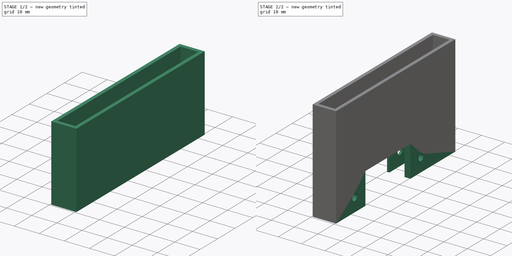
[diagram: build sequence overview — one tinted view per stage of 2, left to right]
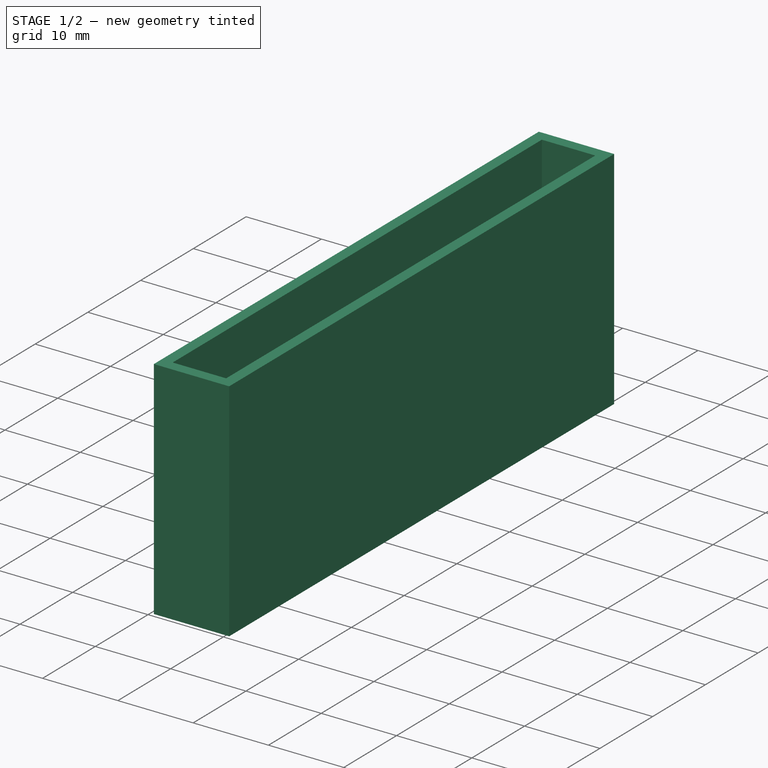
[diagram: stage 1 of 2 — iso view after this stage's code; geometry added in this stage tinted green]
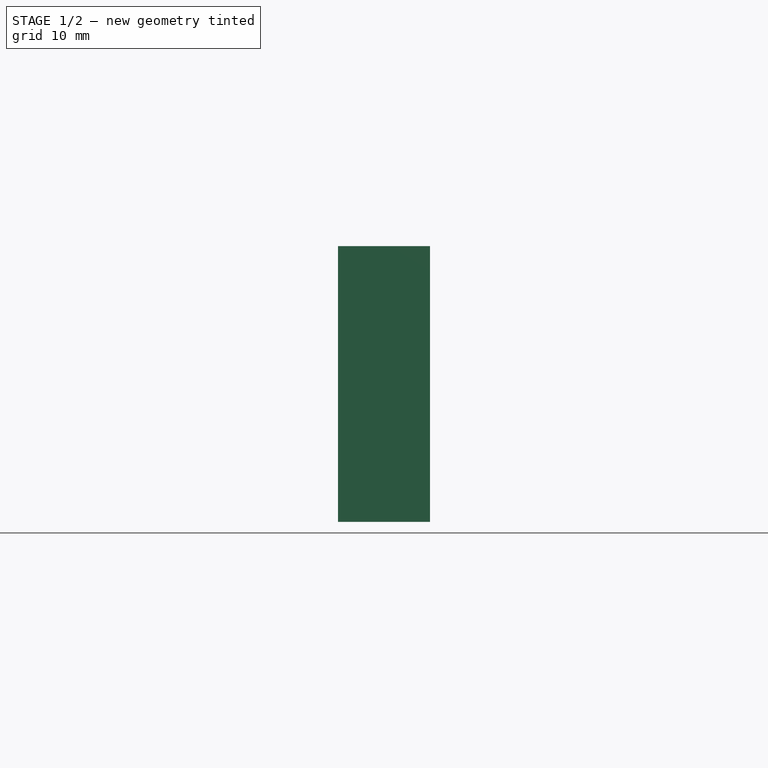
[diagram: stage 1 of 2 — front view after this stage's code; geometry added in this stage tinted green]
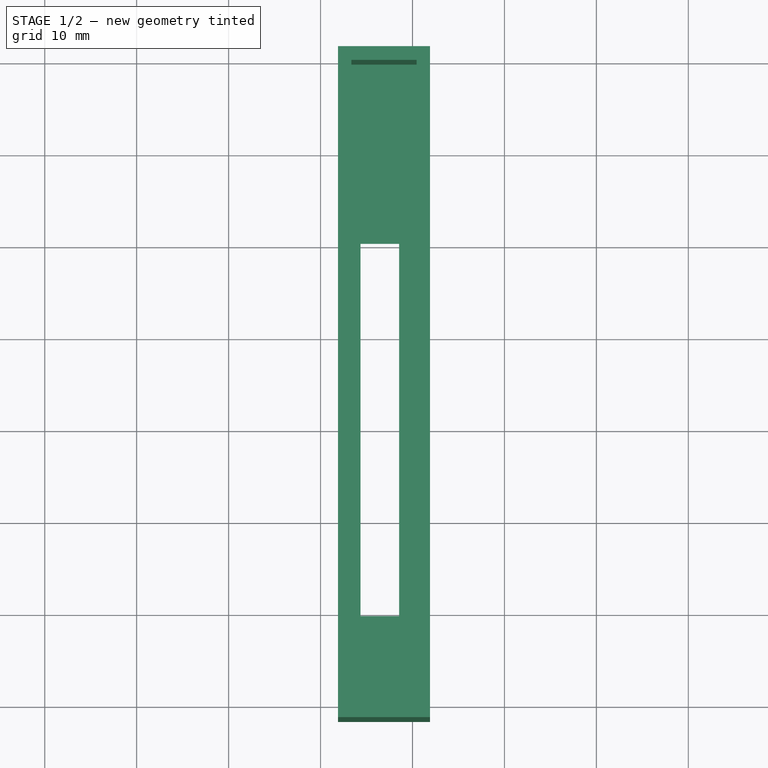
[diagram: stage 1 of 2 — top view after this stage's code; geometry added in this stage tinted green]
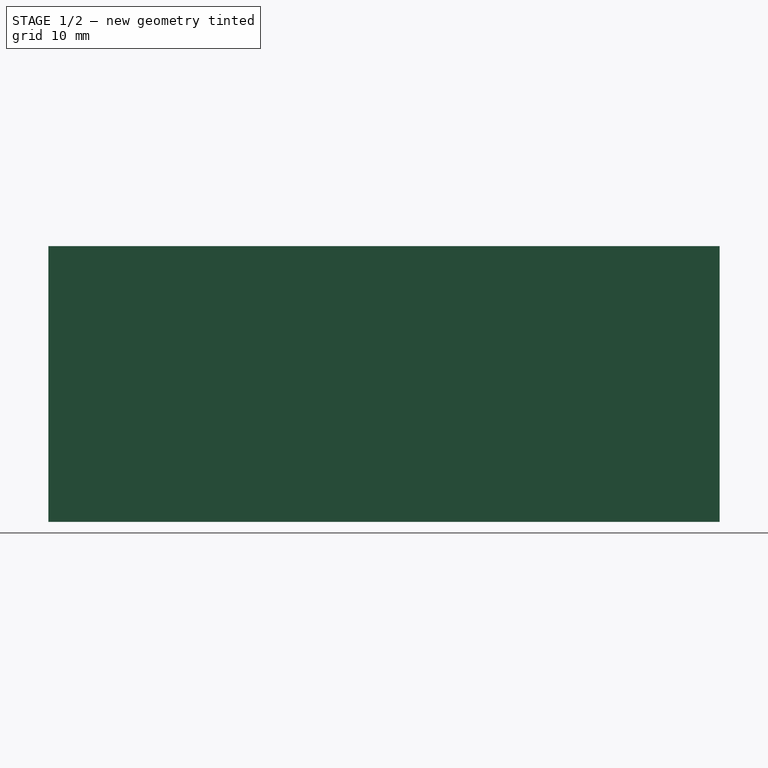
[diagram: stage 1 of 2 — right view after this stage's code; geometry added in this stage tinted green]
FCSTD DOCUMENT  (FreeCAD 1.0R39109 (Git))
Label: ssd side holder
License: All rights reserved
LicenseURL: https://en.wikipedia.org/wiki/All_rights_reserved
objects: Sketcher::SketchObject×4, PartDesign::Pad×3, PartDesign::Hole×1, PartDesign::Body×1
note: 21 computed .brp shape members not serialized (recipe doc carries the construction recipe); baked Part::Feature solids carry a one-line shape summary decoded from their .brp

FEATURE [Sketcher::SketchObject] Sketch
  ArcFitTolerance = 1e-06
  AttachmentSupport = -> [XY_Plane]
  FullyConstrained = false
  MakeInternals = false
  MapMode = 5
  sketch-geometry (8):
    g0: LineSegment StartX=-26.6478 StartY=159.895 StartZ=0 EndX=-26.6478 EndY=89.8951 EndZ=0
    g1: LineSegment StartX=-26.6478 StartY=89.8951 StartZ=0 EndX=-19.5478 EndY=89.8951 EndZ=0
    g2: LineSegment StartX=-19.5478 StartY=89.8951 StartZ=0 EndX=-19.5478 EndY=159.895 EndZ=0
    g3: LineSegment StartX=-19.5478 StartY=159.895 StartZ=0 EndX=-26.6478 EndY=159.895 EndZ=0
    g4: LineSegment StartX=-25.6478 StartY=140.395 StartZ=0 EndX=-25.6478 EndY=99.8951 EndZ=0
    g5: LineSegment StartX=-25.6478 StartY=99.8951 StartZ=0 EndX=-21.4478 EndY=99.8951 EndZ=0
    g6: LineSegment StartX=-21.4478 StartY=99.8951 StartZ=0 EndX=-21.4478 EndY=140.395 EndZ=0
    g7: LineSegment StartX=-21.4478 StartY=140.395 StartZ=0 EndX=-25.6478 EndY=140.395 EndZ=0
  constraints (22):
    c: Coincident(g0,g1)
    c: Coincident(g1,g2)
    c: Coincident(g2,g3)
    c: Coincident(g3,g0)
    c: Vertical(g0)
    c: Vertical(g2)
    c: Horizontal(g1)
    c: Horizontal(g3)
    c: DistanceY(g1,g2) = 70
    c: DistanceX(g0,g1) = 7.1
    c: Coincident(g4,g5)
    c: Coincident(g5,g6)
    c: Coincident(g6,g7)
    c: Coincident(g7,g4)
    c: Vertical(g4)
    c: Vertical(g6)
    c: Horizontal(g5)
    c: Horizontal(g7)
    c: DistanceX(g4,g5) = 4.2
    c: DistanceY(g5,g6) = 40.5
    c: Distance(g1,g5) = 10
    c: Distance(g4,g0) = 1
FEATURE [PartDesign::Pad] Pad  label="base"
  Direction = (0,0,1)
  Length = 0.5
  Length2 = 10
  Profile = -> Sketch
  ReferenceAxis = -> Sketch [N_Axis]
  Refine = true
  Suppressed = false
  Type = 0
FEATURE [Sketcher::SketchObject] Sketch001
  ArcFitTolerance = 1e-06
  AttachmentSupport = -> [Pad]
  ExternalGeometry = -> [Pad]
  FullyConstrained = true
  MakeInternals = false
  MapMode = 5
  Placement = pos=(0,0,0) rot=(1,0,0;3.14159rad)
  expr: Constraints[20] = 1.5
  expr: Constraints[21] = 1.5
  sketch-geometry (8):
    g0: LineSegment StartX=-28.0978 StartY=-88.3951 StartZ=0 EndX=-28.0978 EndY=-161.395 EndZ=0
    g1: LineSegment StartX=-28.0978 StartY=-161.395 StartZ=0 EndX=-18.0978 EndY=-161.395 EndZ=0
    g2: LineSegment StartX=-18.0978 StartY=-161.395 StartZ=0 EndX=-18.0978 EndY=-88.3951 EndZ=0
    g3: LineSegment StartX=-18.0978 StartY=-88.3951 StartZ=0 EndX=-28.0978 EndY=-88.3951 EndZ=0
    g4: LineSegment StartX=-26.6478 StartY=-89.8951 StartZ=0 EndX=-26.6478 EndY=-159.895 EndZ=0
    g5: LineSegment StartX=-26.6478 StartY=-159.895 StartZ=0 EndX=-19.5478 EndY=-159.895 EndZ=0
    g6: LineSegment StartX=-19.5478 StartY=-159.895 StartZ=0 EndX=-19.5478 EndY=-89.8951 EndZ=0
    g7: LineSegment StartX=-19.5478 StartY=-89.8951 StartZ=0 EndX=-26.6478 EndY=-89.8951 EndZ=0
  constraints (22):
    c: Coincident(g0,g1)
    c: Coincident(g1,g2)
    c: Coincident(g2,g3)
    c: Coincident(g3,g0)
    c: Vertical(g0)
    c: Vertical(g2)
    c: Horizontal(g1)
    c: Horizontal(g3)
    c: Coincident(g4,g5)
    c: Coincident(g5,g6)
    c: Coincident(g6,g7)
    c: Coincident(g7,g4)
    c: Vertical(g4)
    c: Vertical(g6)
    c: Horizontal(g5)
    c: Horizontal(g7)
    c: Coincident(g4,g-4)
    c: Coincident(g5,g-6)
    c: DistanceX(g6,g2) = 1.45
    c: DistanceX(g0,g4) = 1.45
    c: DistanceY(g1,g5) = 1.5
    c: DistanceY(g4,g0) = 1.5
FEATURE [PartDesign::Pad] Pad001  label="walls"
  BaseFeature = -> Pad
  Direction = (0,0,-1)
  Length = 30
  Length2 = 10
  Profile = -> Sketch001
  ReferenceAxis = -> Sketch001 [N_Axis]
  Refine = true
  Reversed = true
  Suppressed = false
  Type = 0
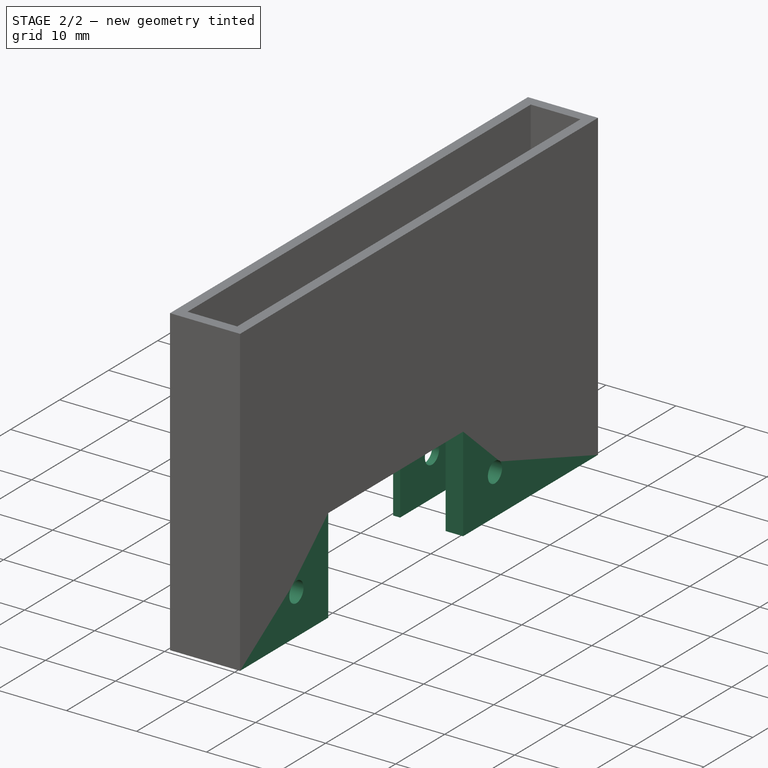
[diagram: stage 2 of 2 — iso view after this stage's code; geometry added in this stage tinted green]
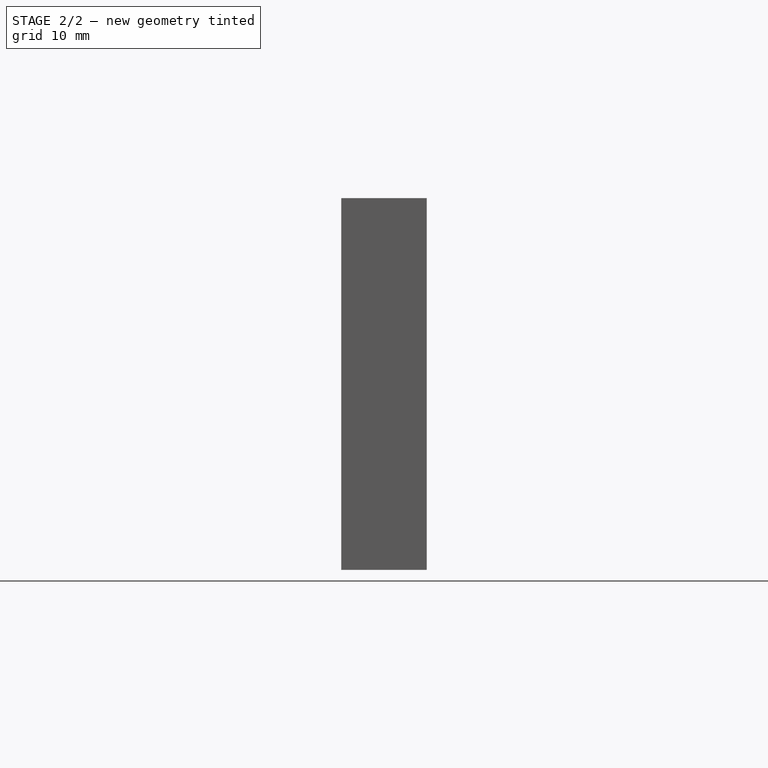
[diagram: stage 2 of 2 — front view after this stage's code; geometry added in this stage tinted green]
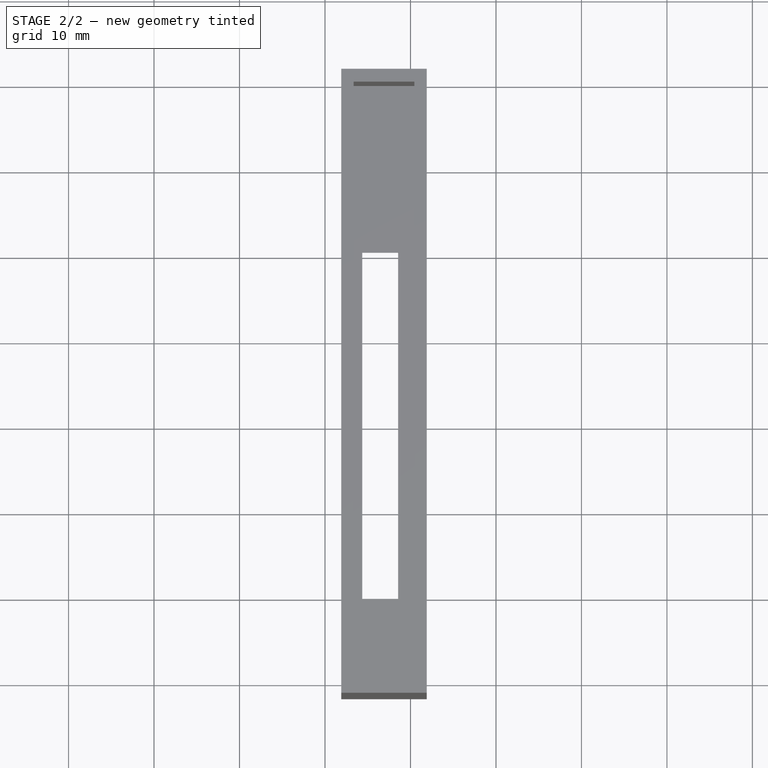
[diagram: stage 2 of 2 — top view after this stage's code; geometry added in this stage tinted green]
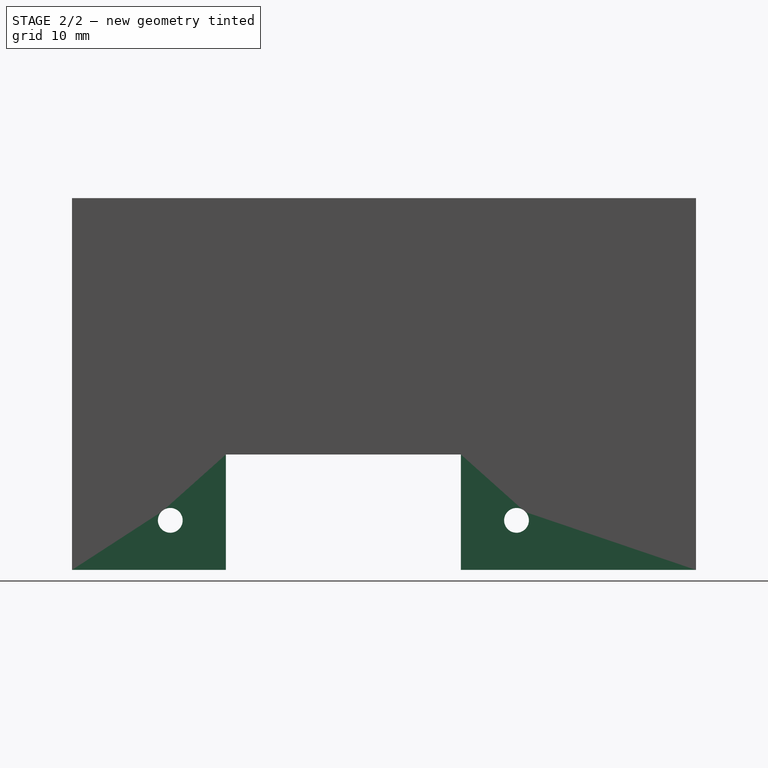
[diagram: stage 2 of 2 — right view after this stage's code; geometry added in this stage tinted green]
FEATURE [Sketcher::SketchObject] Sketch002
  ArcFitTolerance = 1e-06
  AttachmentSupport = -> [Pad001]
  ExternalGeometry = -> [Pad001]
  FullyConstrained = true
  MakeInternals = false
  MapMode = 5
  Placement = pos=(0,0,0) rot=(1,0,0;3.14159rad)
  sketch-geometry (18):
    g0: LineSegment StartX=-28.0978 StartY=-88.3951 StartZ=0 EndX=-28.0978 EndY=-96.3951 EndZ=0
    g1: LineSegment StartX=-27.0978 StartY=-96.3951 StartZ=0 EndX=-20.5978 EndY=-96.3951 EndZ=0
    g2: LineSegment StartX=-20.5978 StartY=-96.3951 StartZ=0 EndX=-20.5978 EndY=-106.395 EndZ=0
    g3: LineSegment StartX=-20.5978 StartY=-106.395 StartZ=0 EndX=-18.0978 EndY=-106.395 EndZ=0
    g4: LineSegment StartX=-18.0978 StartY=-106.395 StartZ=0 EndX=-18.0978 EndY=-88.3951 EndZ=0
    g5: LineSegment StartX=-18.0978 StartY=-88.3951 StartZ=0 EndX=-28.0978 EndY=-88.3951 EndZ=0
    g6: LineSegment StartX=-28.0978 StartY=-161.395 StartZ=0 EndX=-18.0978 EndY=-161.395 EndZ=0
    g7: LineSegment StartX=-18.0978 StartY=-161.395 StartZ=0 EndX=-18.0978 EndY=-133.895 EndZ=0
    g8: LineSegment StartX=-18.0978 StartY=-133.895 StartZ=0 EndX=-20.5978 EndY=-133.895 EndZ=0
    g9: LineSegment StartX=-20.5978 StartY=-133.895 StartZ=0 EndX=-20.5978 EndY=-143.895 EndZ=0
    g10: LineSegment StartX=-20.5978 StartY=-143.895 StartZ=0 EndX=-27.0978 EndY=-143.895 EndZ=0
    g11: LineSegment StartX=-28.0978 StartY=-143.895 StartZ=0 EndX=-28.0978 EndY=-161.395 EndZ=0
    g12: LineSegment StartX=-28.0978 StartY=-96.3951 StartZ=0 EndX=-28.0978 EndY=-106.395 EndZ=0
    g13: LineSegment StartX=-28.0978 StartY=-106.395 StartZ=0 EndX=-27.0978 EndY=-106.395 EndZ=0
    g14: LineSegment StartX=-27.0978 StartY=-106.395 StartZ=0 EndX=-27.0978 EndY=-96.3951 EndZ=0
    g15: LineSegment StartX=-28.0978 StartY=-143.895 StartZ=0 EndX=-28.0978 EndY=-133.895 EndZ=0
    g16: LineSegment StartX=-28.0978 StartY=-133.895 StartZ=0 EndX=-27.0978 EndY=-133.895 EndZ=0
    g17: LineSegment StartX=-27.0978 StartY=-133.895 StartZ=0 EndX=-27.0978 EndY=-143.895 EndZ=0
  constraints (50):
    c: Coincident(g-4,g0)
    c: PointOnObject(g0,g-4)
    c: Horizontal(g1)
    c: Coincident(g1,g2)
    c: Vertical(g2)
    c: Coincident(g2,g3)
    c: PointOnObject(g3,g-5)
    c: Horizontal(g3)
    c: Coincident(g3,g4)
    c: Coincident(g4,g-5)
    c: Coincident(g4,g5)
    c: Coincident(g5,g0)
    c: DistanceX(g0,g1) = 7.5
    c: Distance(g1,g2) = 10
    c: DistanceY(g-7,g0) = 3.5
    c: Coincident(g-6,g6)
    c: Coincident(g6,g-6)
    c: Coincident(g6,g7)
    c: PointOnObject(g7,g-5)
    c: Coincident(g7,g8)
    c: Coincident(g8,g9)
    c: Vertical(g9)
    c: Coincident(g9,g10)
    c: PointOnObject(g11,g-4)
    c: Horizontal(g10)
    c: Coincident(g11,g6)
    c: Horizontal(g8)
    c: DistanceY(g11,g-8) = 3.5
    c: DistanceX(g11,g9) = 7.5
    c: DistanceY(g9,g7) = 10
    c: Coincident(g0,g12)
    c: PointOnObject(g12,g-4)
    c: Coincident(g12,g13)
    c: Horizontal(g13)
    c: Coincident(g13,g14)
    c: Vertical(g14)
    c: Coincident(g11,g15)
    c: PointOnObject(g15,g-4)
    c: Coincident(g15,g16)
    c: Horizontal(g16)
    c: Coincident(g16,g17)
    c: Vertical(g17)
    c: DistanceX(g13,g13) = 1
    c: DistanceX(g16,g16) = 1
    c: Horizontal(g16,g8)
    c: Horizontal(g13,g2)
    c: Coincident(g1,g14)
    c: Horizontal(g1,g0)
    c: Coincident(g10,g17)
    c: Horizontal(g10,g11)
FEATURE [PartDesign::Pad] Pad002  label="feet"
  BaseFeature = -> Pad001
  Direction = (0,0,-1)
  Length = 13.5
  Length2 = 10
  Profile = -> Sketch002
  ReferenceAxis = -> Sketch002 [N_Axis]
  Refine = true
  Suppressed = false
  Type = 0
FEATURE [Sketcher::SketchObject] Sketch003
  ArcFitTolerance = 1e-06
  AttachmentSupport = -> [Pad002]
  ExternalGeometry = -> [Pad002]
  FullyConstrained = true
  MakeInternals = false
  MapMode = 5
  Placement = pos=(-28.0978,0,0) rot=(0.57735,-0.57735,-0.57735;2.0944rad)
  sketch-geometry (2):
    g0: Circle CenterX=-140.395 CenterY=-7.7 CenterZ=0 NormalX=0 NormalY=0 NormalZ=1 AngleXU=0 Radius=1.25
    g1: Circle CenterX=-99.8951 CenterY=-7.7 CenterZ=0 NormalX=0 NormalY=0 NormalZ=1 AngleXU=0 Radius=1.25
  constraints (6):
    c: Diameter(g0) = 2.5
    c: Diameter(g1) = 2.5
    c: DistanceX(g-3,g0) = 3.5
    c: Distance(g1,g-4) = 3.5
    c: DistanceY(g0,g-6) = 7.7
    c: DistanceY(g1,g-5) = 7.7
FEATURE [PartDesign::Hole] Hole
  BaseFeature = -> Pad002
  CustomThreadClearance = 0
  Depth = 168.401
  DepthType = 1
  Diameter = 2.9
  DrillForDepth = false
  DrillPoint = 1
  DrillPointAngle = 118
  HoleCutCountersinkAngle = 90
  HoleCutCustomValues = false
  HoleCutDepth = 0
  HoleCutDiameter = 6.1
  HoleCutType = 0
  ModelThread = false
  Profile = -> Sketch003
  Refine = true
  Suppressed = false
  Tapered = false
  TaperedAngle = 90
  ThreadClass = 0
  ThreadDepth = 168.401
  ThreadDepthType = 0
  ThreadDirection = 0
  ThreadFit = 0
  ThreadSize = 8
  ThreadType = 1
  Threaded = false
  UseCustomThreadClearance = false
FEATURE [PartDesign::Body] Body
  AllowCompound = false
  Group = -> [Sketch,Pad,Sketch001,Pad001,Sketch002,Pad002,Sketch003,Hole]
  Origin = -> Origin
  Tip = -> Hole
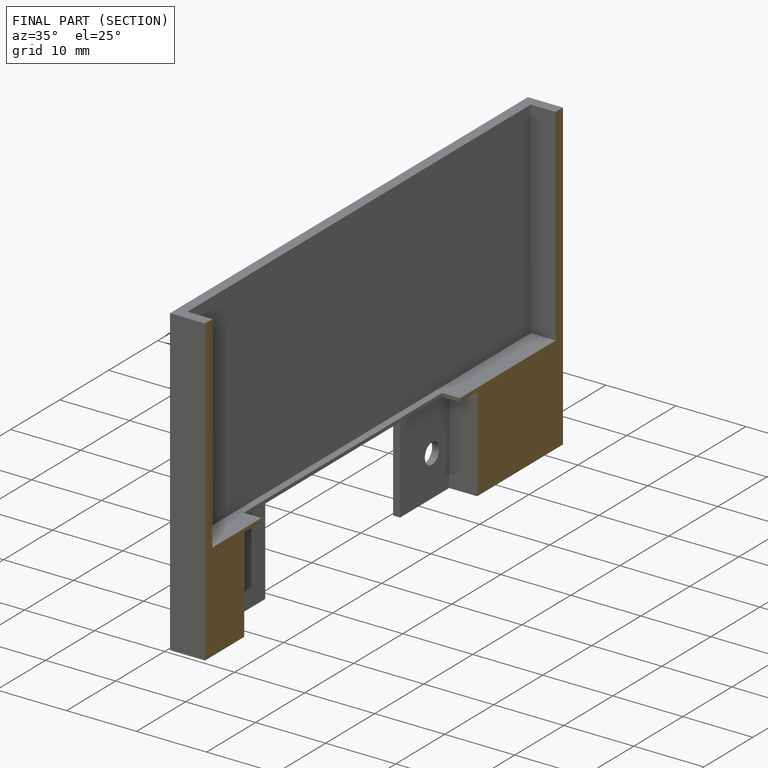
[diagram: finished part — half-section view (interior)]
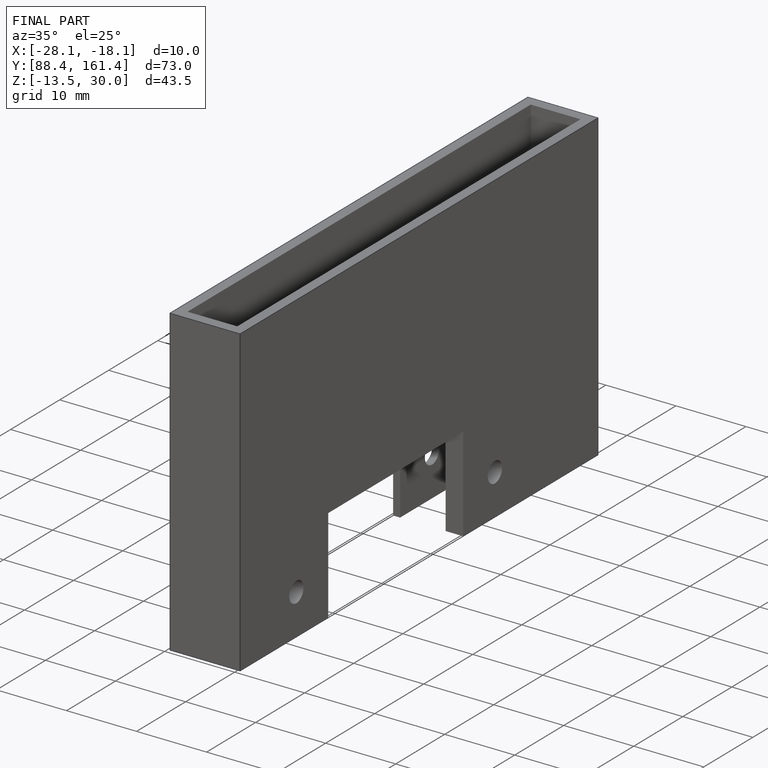
[diagram: finished part — iso view with bounding-box wireframe]
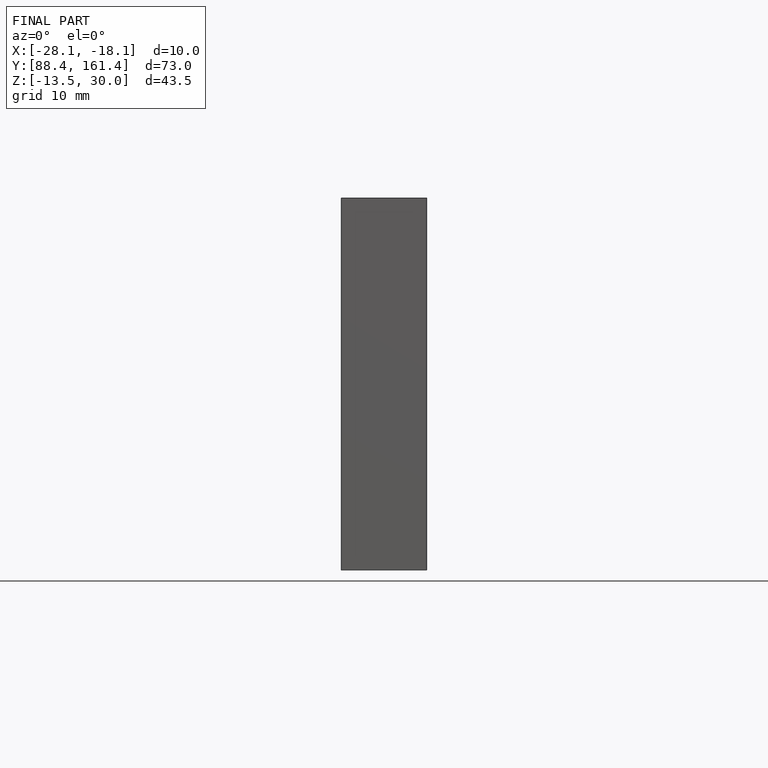
[diagram: finished part — front view with bounding-box wireframe]
